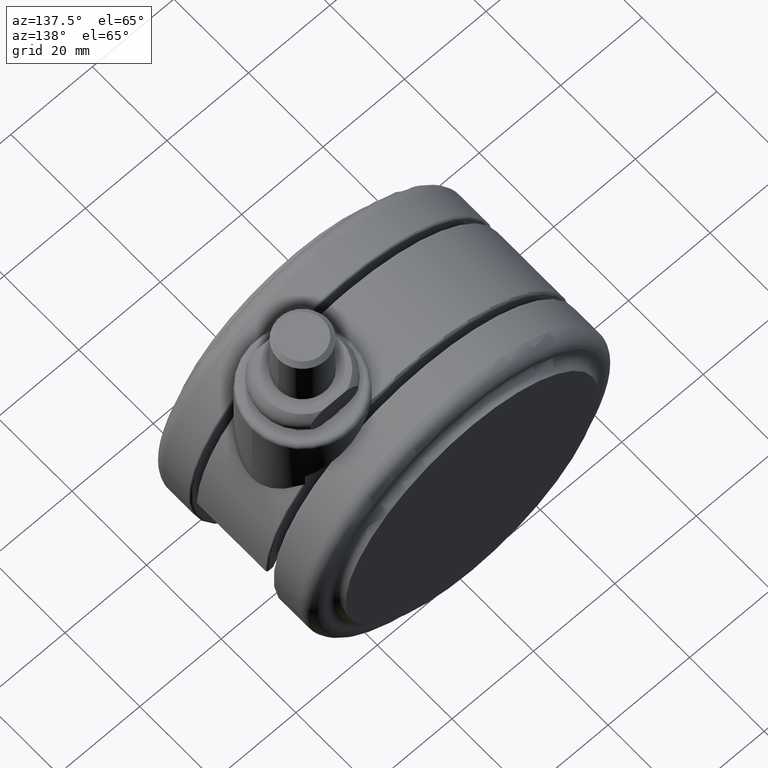
[diagram: clean part render]
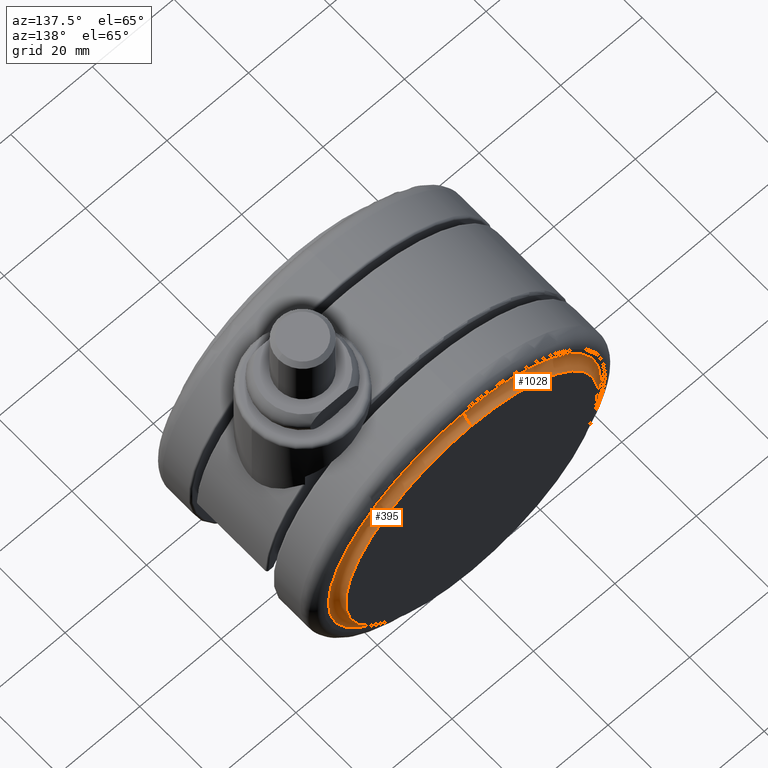
[diagram: same view with one multi-face feature highlighted, each face labeled with its STEP entity id]
A machine part, auxiliary view. The highlighted faces form ONE feature: a constant-radius fillet chain: 2 tangent blend faces with common blend radius 2.2 mm. The faces share edges in the B-rep.
Their STEP definitions:
[1] entity #1028 (Torus):
#25 = CARTESIAN_POINT ( 'NONE',  ( -20.00000000000000400, 23.50000000000000000, -9.500000000000001800 ) ) ;
#42 = CARTESIAN_POINT ( 'NONE',  ( -20.00000000000000000, 23.50000000000000000, -40.50000000000000000 ) ) ;
#233 = AXIS2_PLACEMENT_3D ( 'NONE', #2928, #2949, #2964 ) ;
#283 = ORIENTED_EDGE ( 'NONE', *, *, #519, .F. ) ;
#357 = CARTESIAN_POINT ( 'NONE',  ( -20.00000000000000000, 23.69163752878125400, -73.69163752878149900 ) ) ;
#519 = EDGE_CURVE ( 'NONE', #3643, #1517, #856, .T. ) ;
#652 = DIRECTION ( 'NONE',  ( -1.000000000000000000, 1.582413479254075000E-015, -1.224646799147353200E-016 ) ) ;
#675 = DIRECTION ( 'NONE',  ( 1.577021341797096800E-015, 1.000000000000000000, 0.0000000000000000000 ) ) ;
#755 = CARTESIAN_POINT ( 'NONE',  ( -20.00000000000000000, 23.69163752878125400, -40.50000000000000000 ) ) ;
#843 = DIRECTION ( 'NONE',  ( 1.582413479254075000E-015, 1.000000000000000000, 0.0000000000000000000 ) ) ;
#856 = CIRCLE ( 'NONE', #1923, 2.200000000000000600 ) ;
#1028 = ADVANCED_FACE ( 'NONE', ( #1871 ), #3472, .F. ) ;
#1092 = DIRECTION ( 'NONE',  ( 0.0000000000000000000, 0.0000000000000000000, -1.000000000000000000 ) ) ;
#1107 = CARTESIAN_POINT ( 'NONE',  ( -20.00000000000000700, 21.50000000000000000, -7.116724942436476900 ) ) ;
#1113 = EDGE_CURVE ( 'NONE', #1517, #3758, #1388, .T. ) ;
#1136 = AXIS2_PLACEMENT_3D ( 'NONE', #42, #3806, #1906 ) ;
#1388 = CIRCLE ( 'NONE', #233, 33.38327505756375800 ) ;
#1517 = VERTEX_POINT ( 'NONE', #1107 ) ;
#1552 = ORIENTED_EDGE ( 'NONE', *, *, #2032, .T. ) ;
#1746 = VERTEX_POINT ( 'NONE', #2399 ) ;
#1871 = FACE_OUTER_BOUND ( 'NONE', #3568, .T. ) ;
#1906 = DIRECTION ( 'NONE',  ( 0.0000000000000000000, 0.0000000000000000000, -1.000000000000000000 ) ) ;
#1923 = AXIS2_PLACEMENT_3D ( 'NONE', #3688, #652, #2480 ) ;
#2032 = EDGE_CURVE ( 'NONE', #3643, #1746, #3489, .T. ) ;
#2399 = CARTESIAN_POINT ( 'NONE',  ( -20.00000000000000000, 23.50000000000000000, -71.50000000000001400 ) ) ;
#2480 = DIRECTION ( 'NONE',  ( -1.577021341797096800E-015, -1.000000000000000000, 0.0000000000000000000 ) ) ;
#2514 = DIRECTION ( 'NONE',  ( 1.000000000000000000, -1.582413479254075000E-015, 0.0000000000000000000 ) ) ;
#2576 = AXIS2_PLACEMENT_3D ( 'NONE', #755, #843, #1092 ) ;
#2743 = CARTESIAN_POINT ( 'NONE',  ( -20.00000000000000400, 21.50000000000000000, -73.88327505756353700 ) ) ;
#2928 = CARTESIAN_POINT ( 'NONE',  ( -20.00000000000000000, 21.50000000000000000, -40.50000000000000000 ) ) ;
#2949 = DIRECTION ( 'NONE',  ( -1.582413479254075000E-015, -1.000000000000000000, 0.0000000000000000000 ) ) ;
#2964 = DIRECTION ( 'NONE',  ( 0.0000000000000000000, 0.0000000000000000000, -1.000000000000000000 ) ) ;
#3030 = AXIS2_PLACEMENT_3D ( 'NONE', #357, #2514, #675 ) ;
#3072 = ORIENTED_EDGE ( 'NONE', *, *, #3128, .T. ) ;
#3128 = EDGE_CURVE ( 'NONE', #1746, #3758, #3374, .T. ) ;
#3165 = ORIENTED_EDGE ( 'NONE', *, *, #1113, .F. ) ;
#3374 = CIRCLE ( 'NONE', #3030, 2.200000000000000600 ) ;
#3472 = TOROIDAL_SURFACE ( 'NONE', #2576, 33.19163752878149900, 2.200000000000000200 ) ;
#3489 = CIRCLE ( 'NONE', #1136, 31.00000000000000700 ) ;
#3568 = EDGE_LOOP ( 'NONE', ( #283, #1552, #3072, #3165 ) ) ;
#3643 = VERTEX_POINT ( 'NONE', #25 ) ;
#3688 = CARTESIAN_POINT ( 'NONE',  ( -20.00000000000000400, 23.69163752878125400, -7.308362471218500500 ) ) ;
#3758 = VERTEX_POINT ( 'NONE', #2743 ) ;
#3806 = DIRECTION ( 'NONE',  ( -1.582413479254075000E-015, -1.000000000000000000, 0.0000000000000000000 ) ) ;
[2] entity #395 (Torus):
#25 = CARTESIAN_POINT ( 'NONE',  ( -20.00000000000000400, 23.50000000000000000, -9.500000000000001800 ) ) ;
#357 = CARTESIAN_POINT ( 'NONE',  ( -20.00000000000000000, 23.69163752878125400, -73.69163752878149900 ) ) ;
#395 = ADVANCED_FACE ( 'NONE', ( #2873 ), #1238, .F. ) ;
#436 = ORIENTED_EDGE ( 'NONE', *, *, #3128, .F. ) ;
#519 = EDGE_CURVE ( 'NONE', #3643, #1517, #856, .T. ) ;
#571 = ORIENTED_EDGE ( 'NONE', *, *, #3796, .F. ) ;
#652 = DIRECTION ( 'NONE',  ( -1.000000000000000000, 1.582413479254075000E-015, -1.224646799147353200E-016 ) ) ;
#675 = DIRECTION ( 'NONE',  ( 1.577021341797096800E-015, 1.000000000000000000, 0.0000000000000000000 ) ) ;
#801 = CIRCLE ( 'NONE', #3815, 33.38327505756375800 ) ;
#856 = CIRCLE ( 'NONE', #1923, 2.200000000000000600 ) ;
#1107 = CARTESIAN_POINT ( 'NONE',  ( -20.00000000000000700, 21.50000000000000000, -7.116724942436476900 ) ) ;
#1238 = TOROIDAL_SURFACE ( 'NONE', #3409, 33.19163752878149900, 2.200000000000000200 ) ;
#1306 = CARTESIAN_POINT ( 'NONE',  ( -20.00000000000000000, 21.50000000000000000, -40.50000000000000000 ) ) ;
#1517 = VERTEX_POINT ( 'NONE', #1107 ) ;
#1617 = DIRECTION ( 'NONE',  ( 0.0000000000000000000, 0.0000000000000000000, -1.000000000000000000 ) ) ;
#1742 = ORIENTED_EDGE ( 'NONE', *, *, #519, .T. ) ;
#1746 = VERTEX_POINT ( 'NONE', #2399 ) ;
#1754 = CARTESIAN_POINT ( 'NONE',  ( -20.00000000000000000, 23.69163752878125400, -40.50000000000000000 ) ) ;
#1803 = DIRECTION ( 'NONE',  ( -1.582413479254075000E-015, -1.000000000000000000, 0.0000000000000000000 ) ) ;
#1923 = AXIS2_PLACEMENT_3D ( 'NONE', #3688, #652, #2480 ) ;
#1960 = AXIS2_PLACEMENT_3D ( 'NONE', #3603, #1803, #3916 ) ;
#2399 = CARTESIAN_POINT ( 'NONE',  ( -20.00000000000000000, 23.50000000000000000, -71.50000000000001400 ) ) ;
#2463 = ORIENTED_EDGE ( 'NONE', *, *, #2753, .T. ) ;
#2480 = DIRECTION ( 'NONE',  ( -1.577021341797096800E-015, -1.000000000000000000, 0.0000000000000000000 ) ) ;
#2514 = DIRECTION ( 'NONE',  ( 1.000000000000000000, -1.582413479254075000E-015, 0.0000000000000000000 ) ) ;
#2579 = EDGE_LOOP ( 'NONE', ( #2463, #1742, #571, #436 ) ) ;
#2743 = CARTESIAN_POINT ( 'NONE',  ( -20.00000000000000400, 21.50000000000000000, -73.88327505756353700 ) ) ;
#2753 = EDGE_CURVE ( 'NONE', #1746, #3643, #3809, .T. ) ;
#2873 = FACE_OUTER_BOUND ( 'NONE', #2579, .T. ) ;
#2959 = DIRECTION ( 'NONE',  ( 1.582413479254075000E-015, 1.000000000000000000, 0.0000000000000000000 ) ) ;
#3030 = AXIS2_PLACEMENT_3D ( 'NONE', #357, #2514, #675 ) ;
#3128 = EDGE_CURVE ( 'NONE', #1746, #3758, #3374, .T. ) ;
#3374 = CIRCLE ( 'NONE', #3030, 2.200000000000000600 ) ;
#3409 = AXIS2_PLACEMENT_3D ( 'NONE', #1754, #2959, #3838 ) ;
#3424 = DIRECTION ( 'NONE',  ( -1.582413479254075000E-015, -1.000000000000000000, 0.0000000000000000000 ) ) ;
#3603 = CARTESIAN_POINT ( 'NONE',  ( -20.00000000000000000, 23.50000000000000000, -40.50000000000000000 ) ) ;
#3643 = VERTEX_POINT ( 'NONE', #25 ) ;
#3688 = CARTESIAN_POINT ( 'NONE',  ( -20.00000000000000400, 23.69163752878125400, -7.308362471218500500 ) ) ;
#3758 = VERTEX_POINT ( 'NONE', #2743 ) ;
#3796 = EDGE_CURVE ( 'NONE', #3758, #1517, #801, .T. ) ;
#3809 = CIRCLE ( 'NONE', #1960, 31.00000000000000700 ) ;
#3815 = AXIS2_PLACEMENT_3D ( 'NONE', #1306, #3424, #1617 ) ;
#3838 = DIRECTION ( 'NONE',  ( 0.0000000000000000000, 0.0000000000000000000, -1.000000000000000000 ) ) ;
#3916 = DIRECTION ( 'NONE',  ( 0.0000000000000000000, 0.0000000000000000000, -1.000000000000000000 ) ) ;